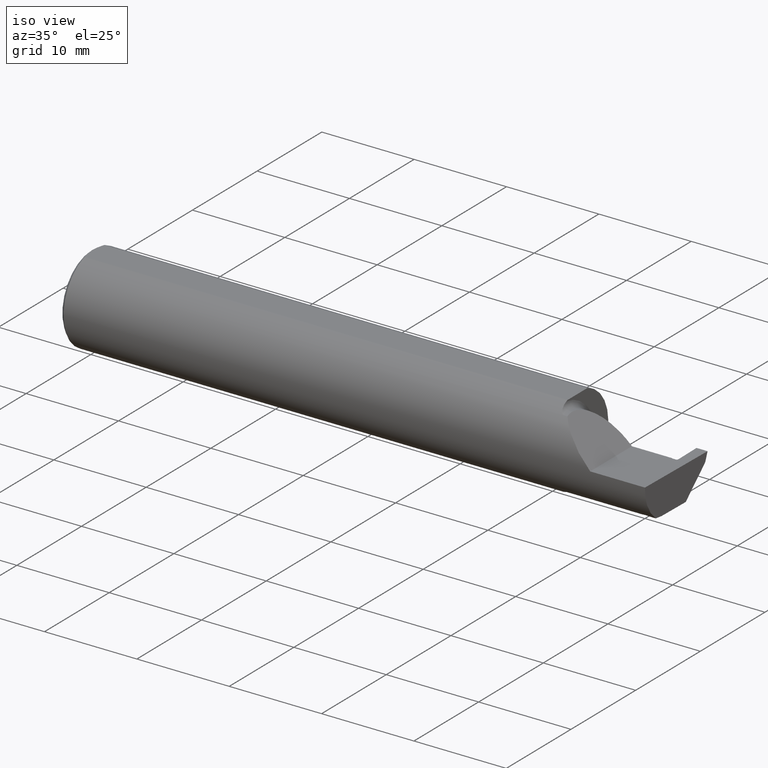
[diagram: clean part render]
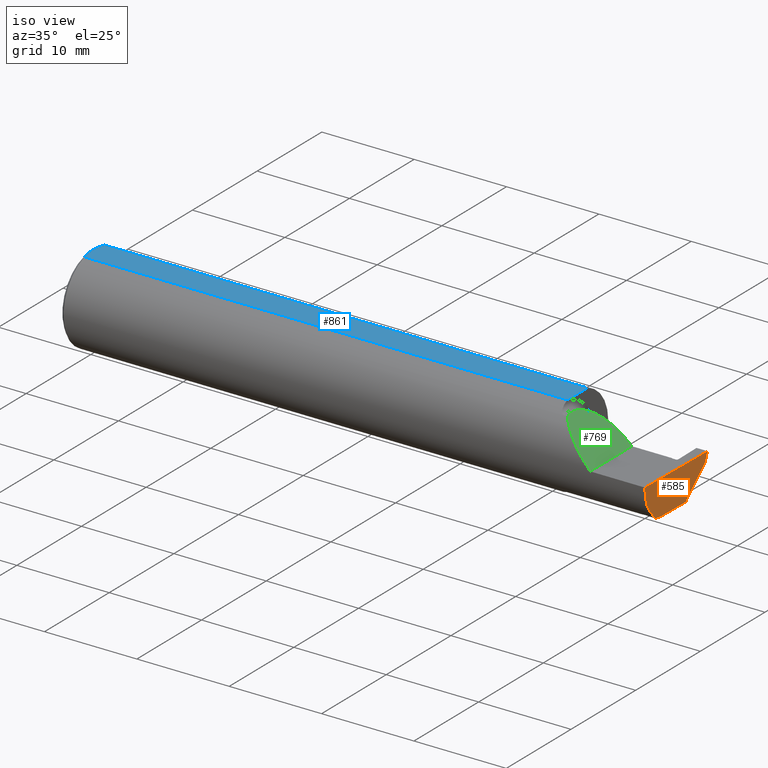
[diagram: same view with three faces highlighted in distinct colors, each labeled with its STEP entity id]
A machine part, iso view with three faces highlighted in distinct colors.
Their STEP definitions:

[orange] entity #585 — the highlighted planar face has unit normal (-0.9995, 0.0174, 0.0262).
#33 = EDGE_CURVE ( 'NONE', #823, #571, #508, .T. ) ;
#47 = ORIENTED_EDGE ( 'NONE', *, *, #259, .F. ) ;
#57 = LINE ( 'NONE', #390, #773 ) ;
#87 = ORIENTED_EDGE ( 'NONE', *, *, #747, .T. ) ;
#90 = EDGE_LOOP ( 'NONE', ( #87, #47, #929, #244, #455, #780 ) ) ;
#129 = CARTESIAN_POINT ( 'NONE',  ( 2.490903355898018923, -0.1172600179964007061, -0.1461167706989303094 ) ) ;
#133 = DIRECTION ( 'NONE',  ( -0.01745240643727703073, -0.9998476951563912696, 0.000000000000000000 ) ) ;
#190 = CARTESIAN_POINT ( 'NONE',  ( 2.500000000000000000, 0.1846500000000000363, 0.000000000000000000 ) ) ;
#228 = CARTESIAN_POINT ( 'NONE',  ( 2.491393556036329837, -0.08334999999999996578, -0.1499999999999999944 ) ) ;
#238 =( BOUNDED_CURVE ( )  B_SPLINE_CURVE ( 3, ( #396, #720, #717, #1042 ),
 .UNSPECIFIED., .F., .T. ) 
 B_SPLINE_CURVE_WITH_KNOTS ( ( 4, 4 ),
 ( 0.3598356817164758414, 0.5878737167659208174 ),
 .UNSPECIFIED. ) 
 CURVE ( )  GEOMETRIC_REPRESENTATION_ITEM ( )  RATIONAL_B_SPLINE_CURVE ( ( 1.000000000000000000, 0.9956712472009929815, 0.9956712472009929815, 1.000000000000000000 ) ) 
 REPRESENTATION_ITEM ( '' )  );
#244 = ORIENTED_EDGE ( 'NONE', *, *, #283, .F. ) ;
#249 = VERTEX_POINT ( 'NONE', #228 ) ;
#259 = EDGE_CURVE ( 'NONE', #571, #249, #469, .T. ) ;
#280 = FACE_OUTER_BOUND ( 'NONE', #90, .T. ) ;
#283 = EDGE_CURVE ( 'NONE', #510, #823, #57, .T. ) ;
#308 = CARTESIAN_POINT ( 'NONE',  ( 2.490903355898018923, -0.1172600179964007061, -0.1461167706989303094 ) ) ;
#390 = CARTESIAN_POINT ( 'NONE',  ( 2.499908263133603814, 0.1837144758152614021, -0.002879247381999359371 ) ) ;
#396 = CARTESIAN_POINT ( 'NONE',  ( 2.490903355898018923, -0.1172600179964007061, -0.1461167706989303094 ) ) ;
#398 = AXIS2_PLACEMENT_3D ( 'NONE', #190, #990, #511 ) ;
#455 = ORIENTED_EDGE ( 'NONE', *, *, #635, .T. ) ;
#469 = LINE ( 'NONE', #715, #889 ) ;
#475 = CARTESIAN_POINT ( 'NONE',  ( 2.491992669264299742, -0.1873499999999999888, -0.05781030015605115313 ) ) ;
#478 = DIRECTION ( 'NONE',  ( -0.01745240643727703073, -0.9998476951563912696, 0.000000000000000000 ) ) ;
#480 = CARTESIAN_POINT ( 'NONE',  ( 2.498789266617083449, 0.1723030515431495657, -0.03799999999999999212 ) ) ;
#489 =( BOUNDED_CURVE ( )  B_SPLINE_CURVE ( 3, ( #308, #792, #475, #548 ),
 .UNSPECIFIED., .F., .T. ) 
 B_SPLINE_CURVE_WITH_KNOTS ( ( 4, 4 ),
 ( 0.08839520912052868662, 0.9829226100289757406 ),
 .UNSPECIFIED. ) 
 CURVE ( )  GEOMETRIC_REPRESENTATION_ITEM ( )  RATIONAL_B_SPLINE_CURVE ( ( 1.000000000000000000, 0.9344226172588803170, 0.9344226172588803170, 1.000000000000000000 ) ) 
 REPRESENTATION_ITEM ( '' )  );
#508 = LINE ( 'NONE', #594, #940 ) ;
#510 = VERTEX_POINT ( 'NONE', #844 ) ;
#511 = DIRECTION ( 'NONE',  ( 0.02618093305822682959, 0.000000000000000000, 0.9996572206232497981 ) ) ;
#520 = LINE ( 'NONE', #930, #876 ) ;
#529 = VERTEX_POINT ( 'NONE', #129 ) ;
#548 = CARTESIAN_POINT ( 'NONE',  ( 2.493506715846705468, -0.1873499999999999888, 0.000000000000000000 ) ) ;
#571 = VERTEX_POINT ( 'NONE', #776 ) ;
#585 = ADVANCED_FACE ( 'NONE', ( #280 ), #690, .F. ) ;
#594 = CARTESIAN_POINT ( 'NONE',  ( 2.498695265107655938, 0.1701492753368748778, -0.04015377620627467309 ) ) ;
#635 = EDGE_CURVE ( 'NONE', #510, #643, #520, .T. ) ;
#643 = VERTEX_POINT ( 'NONE', #695 ) ;
#690 = PLANE ( 'NONE',  #398 ) ;
#695 = CARTESIAN_POINT ( 'NONE',  ( 2.493506715846705468, -0.1873499999999999888, 0.000000000000000000 ) ) ;
#715 = CARTESIAN_POINT ( 'NONE',  ( 2.494809345111306254, 0.1123404250442412711, -0.1499999999999999944 ) ) ;
#717 = CARTESIAN_POINT ( 'NONE',  ( 2.491194102659540111, -0.09477667630339424443, -0.1499999999999999944 ) ) ;
#718 = EDGE_CURVE ( 'NONE', #529, #643, #489, .T. ) ;
#720 = CARTESIAN_POINT ( 'NONE',  ( 2.491029992219911282, -0.1061291577212409853, -0.1486999626928446061 ) ) ;
#747 = EDGE_CURVE ( 'NONE', #529, #249, #238, .T. ) ;
#773 = VECTOR ( 'NONE', #1034, 39.37007874015748854 ) ;
#776 = CARTESIAN_POINT ( 'NONE',  ( 2.493901029378150724, 0.06030305154314920951, -0.1499999999999999944 ) ) ;
#780 = ORIENTED_EDGE ( 'NONE', *, *, #718, .F. ) ;
#792 = CARTESIAN_POINT ( 'NONE',  ( 2.491063981715931686, -0.1623470442677541759, -0.1099340280425337990 ) ) ;
#823 = VERTEX_POINT ( 'NONE', #480 ) ;
#844 = CARTESIAN_POINT ( 'NONE',  ( 2.500000000000000000, 0.1846500000000000363, 0.000000000000000000 ) ) ;
#876 = VECTOR ( 'NONE', #133, 39.37007874015748143 ) ;
#889 = VECTOR ( 'NONE', #478, 39.37007874015748143 ) ;
#929 = ORIENTED_EDGE ( 'NONE', *, *, #33, .F. ) ;
#930 = CARTESIAN_POINT ( 'NONE',  ( 2.500000000000000000, 0.1846500000000000363, 0.000000000000000000 ) ) ;
#933 = DIRECTION ( 'NONE',  ( -0.03084697155452398656, -0.7067702824630919256, -0.7067702824630897052 ) ) ;
#940 = VECTOR ( 'NONE', #933, 39.37007874015748143 ) ;
#990 = DIRECTION ( 'NONE',  ( -0.9995050723230146650, 0.01744642593347454917, 0.02617694830787320806 ) ) ;
#1034 = DIRECTION ( 'NONE',  ( -0.03028809442608968241, -0.3088752205991470157, -0.9506201814793669991 ) ) ;
#1042 = CARTESIAN_POINT ( 'NONE',  ( 2.491393556036329837, -0.08334999999999996578, -0.1499999999999999944 ) ) ;

[blue] entity #861 — the highlighted planar face has unit normal (0, -0, 1).
#27 = CARTESIAN_POINT ( 'NONE',  ( 0.01186375298701897348, -0.05066077215909271098, 0.1773499999999999799 ) ) ;
#40 = CARTESIAN_POINT ( 'NONE',  ( 0.004999999999999835305, 2.941982542510190671E-17, 0.1773499999999999799 ) ) ;
#76 = CARTESIAN_POINT ( 'NONE',  ( 2.075000000000000178, -0.06039039658753699025, 0.1773499999999999799 ) ) ;
#81 = B_SPLINE_CURVE_WITH_KNOTS ( 'NONE', 3,
 ( #187, #680, #751, #348, #502, #191 ),
 .UNSPECIFIED., .F., .F.,
 ( 4, 2, 4 ),
 ( 0.004207325536406422359, 0.004979129323161655095, 0.005750933109916887831 ),
 .UNSPECIFIED. ) ;
#91 = PLANE ( 'NONE',  #793 ) ;
#99 = EDGE_CURVE ( 'NONE', #272, #229, #839, .T. ) ;
#100 = VECTOR ( 'NONE', #670, 39.37007874015748143 ) ;
#107 = EDGE_CURVE ( 'NONE', #229, #154, #130, .T. ) ;
#121 = CARTESIAN_POINT ( 'NONE',  ( 0.004999999999999835305, 2.941982542510190671E-17, 0.1773499999999999799 ) ) ;
#130 = LINE ( 'NONE', #200, #100 ) ;
#132 = ORIENTED_EDGE ( 'NONE', *, *, #107, .T. ) ;
#154 = VERTEX_POINT ( 'NONE', #1017 ) ;
#187 = CARTESIAN_POINT ( 'NONE',  ( 0.01499999999999756042, 0.06039039658754215278, 0.1773499999999999799 ) ) ;
#189 = CARTESIAN_POINT ( 'NONE',  ( 0.005896899252109314912, -0.02043863390046160924, 0.1773500000000000354 ) ) ;
#191 = CARTESIAN_POINT ( 'NONE',  ( 0.004999999999999835305, 2.941982542510190671E-17, 0.1773499999999999799 ) ) ;
#200 = CARTESIAN_POINT ( 'NONE',  ( 0.000000000000000000, 0.06039039658753697637, 0.1773499999999999799 ) ) ;
#229 = VERTEX_POINT ( 'NONE', #642 ) ;
#246 = FACE_OUTER_BOUND ( 'NONE', #1010, .T. ) ;
#272 = VERTEX_POINT ( 'NONE', #76 ) ;
#323 = CARTESIAN_POINT ( 'NONE',  ( 2.500000000000000000, -0.1873500000000000165, 0.1773499999999999799 ) ) ;
#348 = CARTESIAN_POINT ( 'NONE',  ( 0.005916828623699125177, 0.02060071390057613763, 0.1773499999999999799 ) ) ;
#353 = CARTESIAN_POINT ( 'NONE',  ( 0.000000000000000000, -0.06039039658753697637, 0.1773499999999999799 ) ) ;
#355 = CARTESIAN_POINT ( 'NONE',  ( 0.004999999999999833571, -0.01026662907944655458, 0.1773499999999999521 ) ) ;
#365 = LINE ( 'NONE', #353, #451 ) ;
#451 = VECTOR ( 'NONE', #691, 39.37007874015748143 ) ;
#454 = DIRECTION ( 'NONE',  ( -0.000000000000000000, 1.000000000000000000, 0.000000000000000000 ) ) ;
#474 = ORIENTED_EDGE ( 'NONE', *, *, #99, .T. ) ;
#493 = DIRECTION ( 'NONE',  ( 1.000000000000000000, 0.000000000000000000, -0.000000000000000000 ) ) ;
#502 = CARTESIAN_POINT ( 'NONE',  ( 0.004999999999999839642, 0.01027925662263861305, 0.1773499999999999799 ) ) ;
#545 = EDGE_CURVE ( 'NONE', #694, #272, #365, .T. ) ;
#550 = EDGE_CURVE ( 'NONE', #154, #566, #81, .T. ) ;
#554 = VECTOR ( 'NONE', #454, 39.37007874015748143 ) ;
#559 = ORIENTED_EDGE ( 'NONE', *, *, #545, .T. ) ;
#566 = VERTEX_POINT ( 'NONE', #121 ) ;
#572 = DIRECTION ( 'NONE',  ( 0.000000000000000000, -0.000000000000000000, 1.000000000000000000 ) ) ;
#642 = CARTESIAN_POINT ( 'NONE',  ( 2.075000000000000178, 0.06039039658754216666, 0.1773499999999999799 ) ) ;
#670 = DIRECTION ( 'NONE',  ( -1.000000000000000000, -0.000000000000000000, -0.000000000000000000 ) ) ;
#680 = CARTESIAN_POINT ( 'NONE',  ( 0.01185291896084217714, 0.05062716160312498437, 0.1773499999999999521 ) ) ;
#691 = DIRECTION ( 'NONE',  ( 1.000000000000000000, 0.000000000000000000, 0.000000000000000000 ) ) ;
#694 = VERTEX_POINT ( 'NONE', #842 ) ;
#727 = B_SPLINE_CURVE_WITH_KNOTS ( 'NONE', 3,
 ( #40, #355, #189, #846, #27, #749 ),
 .UNSPECIFIED., .F., .F.,
 ( 4, 2, 4 ),
 ( 0.005750933109916887831, 0.006521788775031543001, 0.007292644440146199038 ),
 .UNSPECIFIED. ) ;
#749 = CARTESIAN_POINT ( 'NONE',  ( 0.01499999999999999944, -0.06039039658753697637, 0.1773499999999999799 ) ) ;
#751 = CARTESIAN_POINT ( 'NONE',  ( 0.009346310357820472939, 0.04072930668827419443, 0.1773500000000000354 ) ) ;
#793 = AXIS2_PLACEMENT_3D ( 'NONE', #323, #572, #493 ) ;
#839 = LINE ( 'NONE', #926, #554 ) ;
#842 = CARTESIAN_POINT ( 'NONE',  ( 0.01499999999999999944, -0.06039039658753697637, 0.1773499999999999799 ) ) ;
#846 = CARTESIAN_POINT ( 'NONE',  ( 0.009318557230853204490, -0.04061090184993776386, 0.1773499999999999799 ) ) ;
#861 = ADVANCED_FACE ( 'NONE', ( #246 ), #91, .T. ) ;
#908 = ORIENTED_EDGE ( 'NONE', *, *, #550, .T. ) ;
#926 = CARTESIAN_POINT ( 'NONE',  ( 2.075000000000000178, -0.1873500000000000165, 0.1773499999999999799 ) ) ;
#949 = EDGE_CURVE ( 'NONE', #566, #694, #727, .T. ) ;
#979 = ORIENTED_EDGE ( 'NONE', *, *, #949, .T. ) ;
#1010 = EDGE_LOOP ( 'NONE', ( #559, #474, #132, #908, #979 ) ) ;
#1017 = CARTESIAN_POINT ( 'NONE',  ( 0.01499999999999756042, 0.06039039658754215278, 0.1773499999999999799 ) ) ;

[green] entity #769 — the highlighted planar face has unit normal (-0.7071, 0, -0.7071).
#13 = VECTOR ( 'NONE', #662, 39.37007874015748143 ) ;
#34 = CARTESIAN_POINT ( 'NONE',  ( 2.172132034355964691, 0.06665000000000004254, 0.08786796564403576149 ) ) ;
#67 =( BOUNDED_CURVE ( )  B_SPLINE_CURVE ( 3, ( #669, #910, #428, #434 ),
 .UNSPECIFIED., .F., .T. ) 
 B_SPLINE_CURVE_WITH_KNOTS ( ( 4, 4 ),
 ( 4.712388980384688786, 5.606916381293135743 ),
 .UNSPECIFIED. ) 
 CURVE ( )  GEOMETRIC_REPRESENTATION_ITEM ( )  RATIONAL_B_SPLINE_CURVE ( ( 1.000000000000000000, 0.9344226172588803170, 0.9344226172588803170, 1.000000000000000000 ) ) 
 REPRESENTATION_ITEM ( '' )  );
#70 = AXIS2_PLACEMENT_3D ( 'NONE', #644, #376, #632 ) ;
#78 = FACE_OUTER_BOUND ( 'NONE', #761, .T. ) ;
#143 = CARTESIAN_POINT ( 'NONE',  ( 2.111300037307155986, -0.1061291577212410964, 0.1486999626928446061 ) ) ;
#163 = CARTESIAN_POINT ( 'NONE',  ( 2.260000000000000231, -0.2000000000000000111, 2.939152317953647352E-17 ) ) ;
#186 = EDGE_CURVE ( 'NONE', #911, #900, #894, .T. ) ;
#219 = CARTESIAN_POINT ( 'NONE',  ( 2.113883229301070532, -0.1172600179964009143, 0.1461167706989301707 ) ) ;
#220 = ORIENTED_EDGE ( 'NONE', *, *, #954, .F. ) ;
#271 = CARTESIAN_POINT ( 'NONE',  ( 2.110000000000001208, 0.004517965644035785294, 0.1500000000000000500 ) ) ;
#303 = VERTEX_POINT ( 'NONE', #486 ) ;
#334 = LINE ( 'NONE', #163, #13 ) ;
#376 = DIRECTION ( 'NONE',  ( -0.7071067811865496822, 0.000000000000000000, -0.7071067811865454633 ) ) ;
#418 = ORIENTED_EDGE ( 'NONE', *, *, #492, .F. ) ;
#428 = CARTESIAN_POINT ( 'NONE',  ( 2.150065971957467070, -0.1623470442677542591, 0.1099340280425335908 ) ) ;
#434 = CARTESIAN_POINT ( 'NONE',  ( 2.113883229301070532, -0.1172600179964009143, 0.1461167706989301707 ) ) ;
#483 = ORIENTED_EDGE ( 'NONE', *, *, #884, .T. ) ;
#486 = CARTESIAN_POINT ( 'NONE',  ( 2.260000000000000231, 0.06665000000000005642, 2.939152317953647352E-17 ) ) ;
#492 = EDGE_CURVE ( 'NONE', #789, #911, #67, .T. ) ;
#543 = PLANE ( 'NONE',  #70 ) ;
#589 = CARTESIAN_POINT ( 'NONE',  ( 2.110000000000001208, -0.08334999999999996578, 0.1499999999999999944 ) ) ;
#632 = DIRECTION ( 'NONE',  ( -0.7071067811865454633, 0.000000000000000000, 0.7071067811865496822 ) ) ;
#644 = CARTESIAN_POINT ( 'NONE',  ( 2.260000000000000231, -0.2000000000000000111, 2.939152317953647352E-17 ) ) ;
#662 = DIRECTION ( 'NONE',  ( -0.000000000000000000, 1.000000000000000000, -0.000000000000000000 ) ) ;
#667 = CARTESIAN_POINT ( 'NONE',  ( 2.110000000000001208, -0.08334999999999996578, 0.1499999999999999944 ) ) ;
#669 = CARTESIAN_POINT ( 'NONE',  ( 2.260000000000000231, -0.1873499999999999888, 2.939152317953647352E-17 ) ) ;
#761 = EDGE_LOOP ( 'NONE', ( #804, #418, #483, #220 ) ) ;
#769 = ADVANCED_FACE ( 'NONE', ( #78 ), #543, .F. ) ;
#774 = CARTESIAN_POINT ( 'NONE',  ( 2.260000000000000231, 0.06665000000000005642, 2.939152317953647352E-17 ) ) ;
#784 = CARTESIAN_POINT ( 'NONE',  ( 2.110000000000000764, -0.09477667630339427218, 0.1500000000000000222 ) ) ;
#788 = CARTESIAN_POINT ( 'NONE',  ( 2.110000000000001208, -0.08334999999999996578, 0.1499999999999999944 ) ) ;
#789 = VERTEX_POINT ( 'NONE', #859 ) ;
#804 = ORIENTED_EDGE ( 'NONE', *, *, #186, .F. ) ;
#859 = CARTESIAN_POINT ( 'NONE',  ( 2.260000000000000231, -0.1873499999999999888, 2.939152317953647352E-17 ) ) ;
#884 = EDGE_CURVE ( 'NONE', #789, #303, #334, .T. ) ;
#894 =( BOUNDED_CURVE ( )  B_SPLINE_CURVE ( 3, ( #219, #143, #784, #788 ),
 .UNSPECIFIED., .F., .T. ) 
 B_SPLINE_CURVE_WITH_KNOTS ( ( 4, 4 ),
 ( 6.055147272130140479, 6.283185307179586232 ),
 .UNSPECIFIED. ) 
 CURVE ( )  GEOMETRIC_REPRESENTATION_ITEM ( )  RATIONAL_B_SPLINE_CURVE ( ( 1.000000000000000000, 0.9956712472009929815, 0.9956712472009929815, 1.000000000000000000 ) ) 
 REPRESENTATION_ITEM ( '' )  );
#900 = VERTEX_POINT ( 'NONE', #667 ) ;
#910 = CARTESIAN_POINT ( 'NONE',  ( 2.202189699843949189, -0.1873500000000000443, 0.05781030015605096578 ) ) ;
#911 = VERTEX_POINT ( 'NONE', #1009 ) ;
#954 = EDGE_CURVE ( 'NONE', #900, #303, #1037, .T. ) ;
#1009 = CARTESIAN_POINT ( 'NONE',  ( 2.113883229301070532, -0.1172600179964009143, 0.1461167706989301707 ) ) ;
#1037 =( BOUNDED_CURVE ( )  B_SPLINE_CURVE ( 3, ( #589, #271, #34, #774 ),
 .UNSPECIFIED., .F., .T. ) 
 B_SPLINE_CURVE_WITH_KNOTS ( ( 4, 4 ),
 ( 0.000000000000000000, 1.570796326794896558 ),
 .UNSPECIFIED. ) 
 CURVE ( )  GEOMETRIC_REPRESENTATION_ITEM ( )  RATIONAL_B_SPLINE_CURVE ( ( 1.000000000000000000, 0.8047378541243649375, 0.8047378541243649375, 1.000000000000000000 ) ) 
 REPRESENTATION_ITEM ( '' )  );